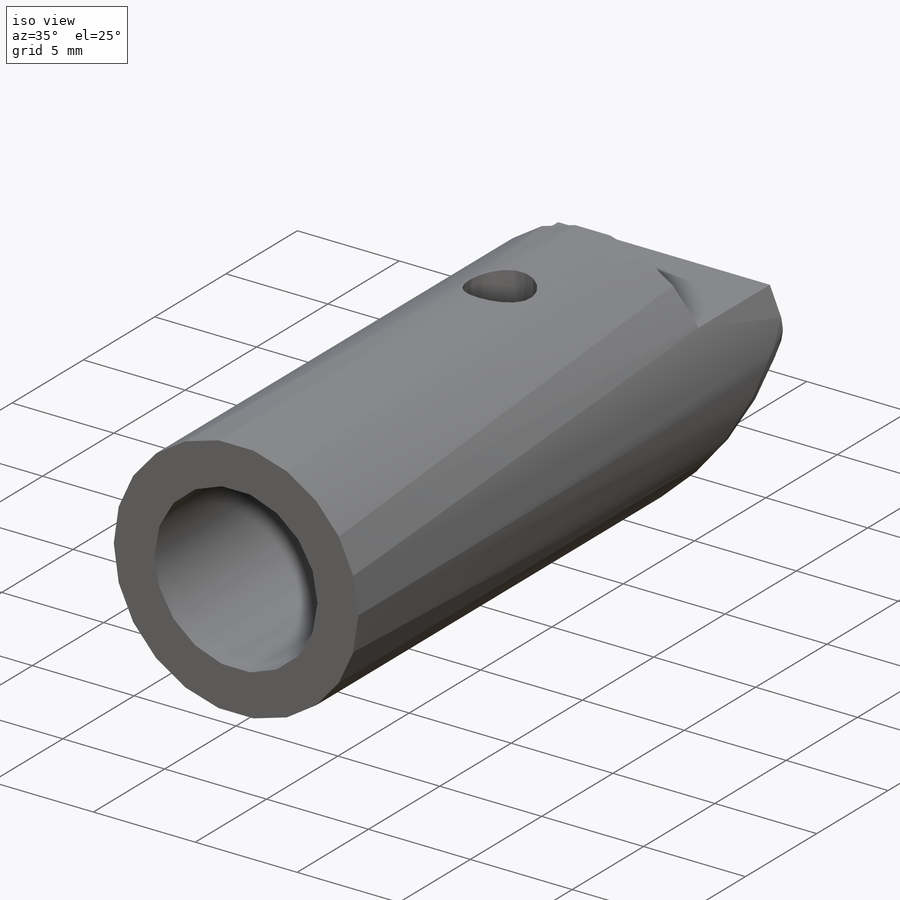
[diagram: iso view]
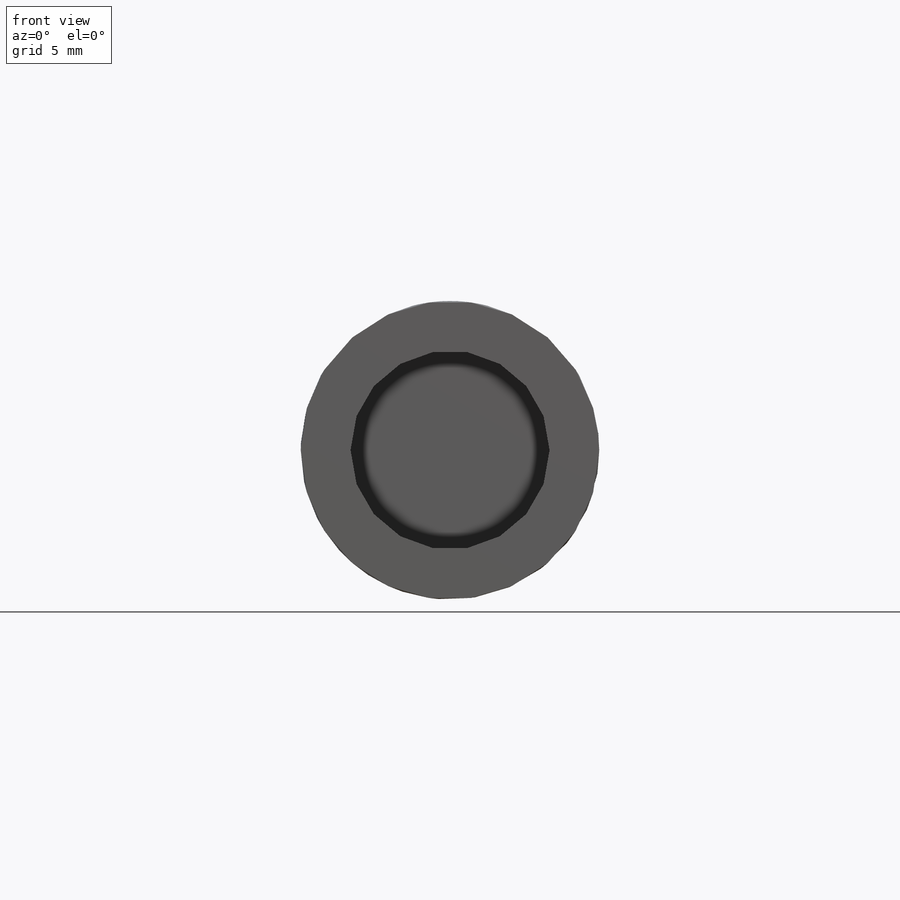
[diagram: front view]
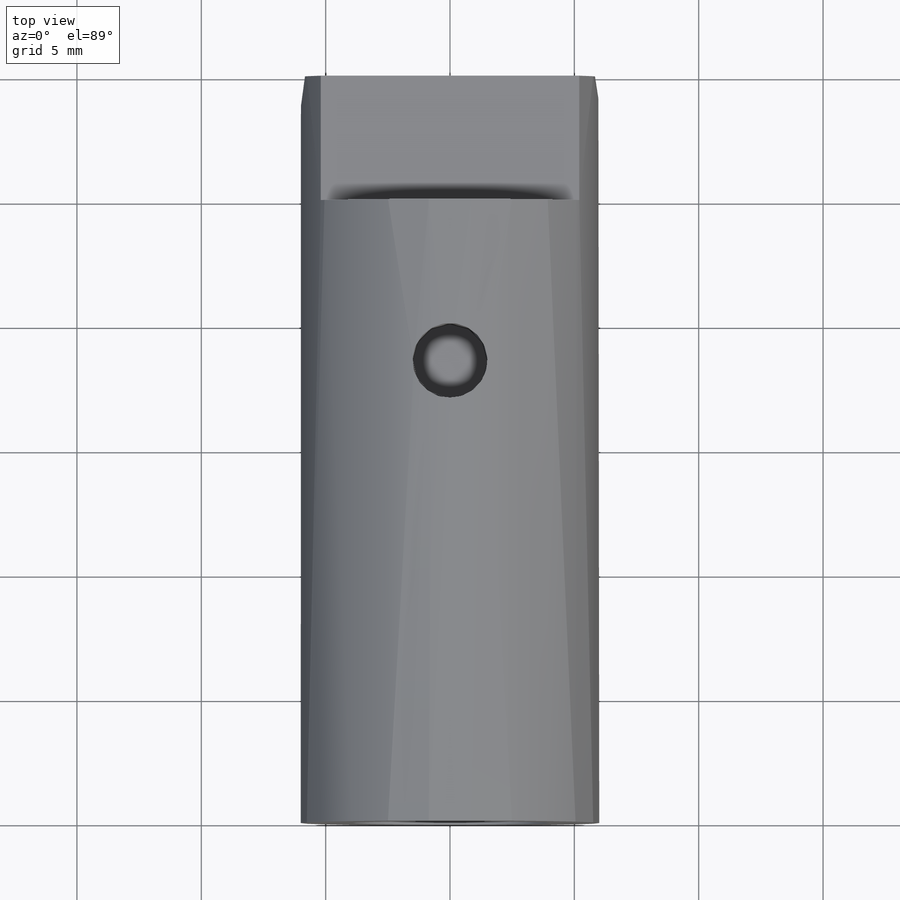
[diagram: top view]
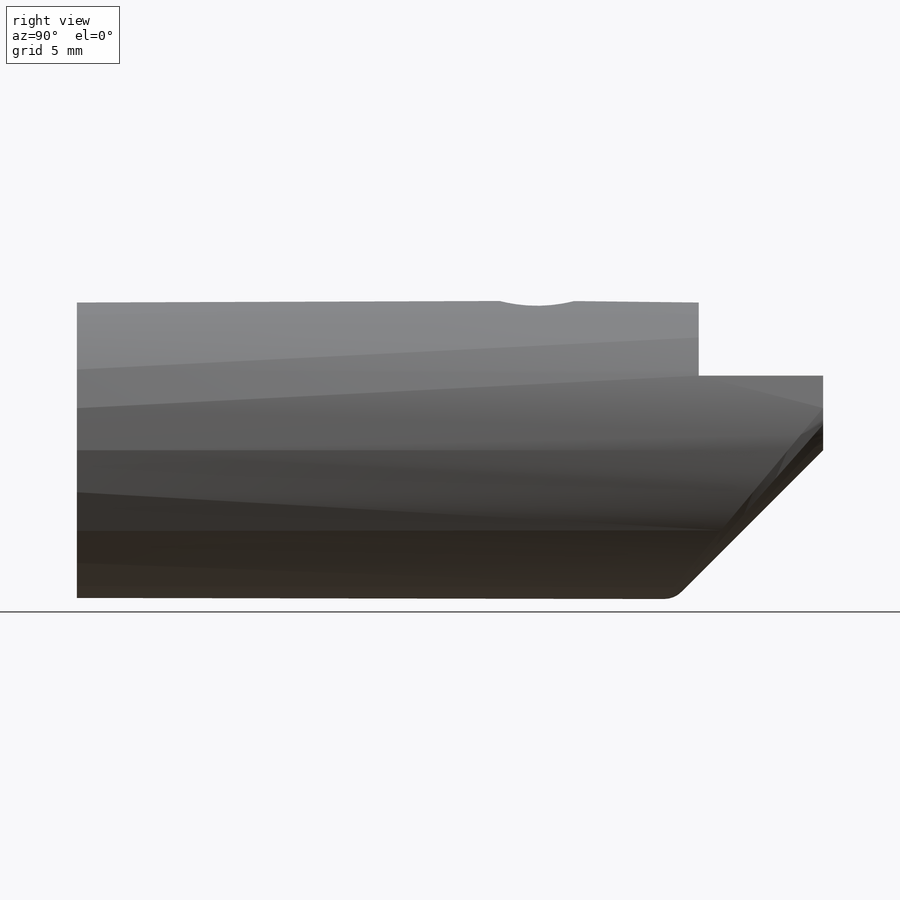
[diagram: right view]
SOLIDWORKS PART (.sldprt)
format: sldprt  version: not decoded by parser v0  size: 197,632 bytes
history: native  units: mm
features: sketch x5, cut_extrude x4, material x1, extrude x1, fillet x1, plane x1 (+14 scaffold rows collapsed)
feature tree (27):
  scaffold x14  (default folders/planes/origin — collapsed)
  material  "Material <not specified>"
  sketch  "Sketch1"  dims[D1=12.0mm]
  extrude  "Boss-Extrude1"  Depth=30mm
  sketch  "Sketch2"  dims[D1=8.0mm]
  cut_extrude  "Cut-Extrude1"  Depth=12mm
  sketch  "Sketch3"  dims[D1=9.0mm D2=5.0mm D3=10.0mm D4=5.3324mm]
  cut_extrude  "Cut-Extrude2"  Depth=12mm
  sketch  "Sketch4"  dims[c1.D1=1.0mm c1.D2=9.0mm c2.D2=45.0deg c2.D3=~8.687927mm]
  cut_extrude  "Cut-Extrude3"  Depth=22mm
  fillet  "Fillet1"  Radius=1mm
  plane  "Plane1"  Offset=6mm
  sketch  "Sketch5"  dims[c1.D2=3.0mm c1.D1=5.0mm c2.D1=5.0mm]
  cut_extrude  "Cut-Extrude4"  Depth=3mm
decode coverage: 11 of 11 modeling features carry decoded parameters
note: ~ marks probable driven/reference dimensions
note: suppression state not decoded; provenance and decode notes live in map.json
